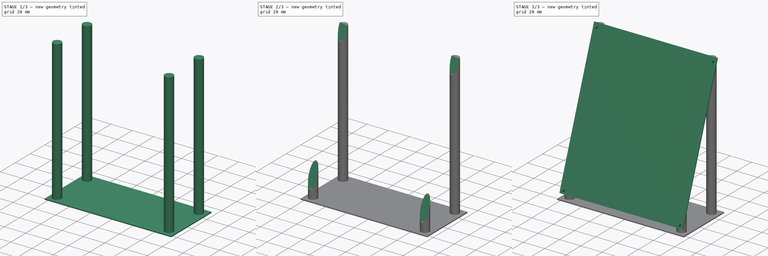
[diagram: build sequence overview — one tinted view per stage of 3, left to right]
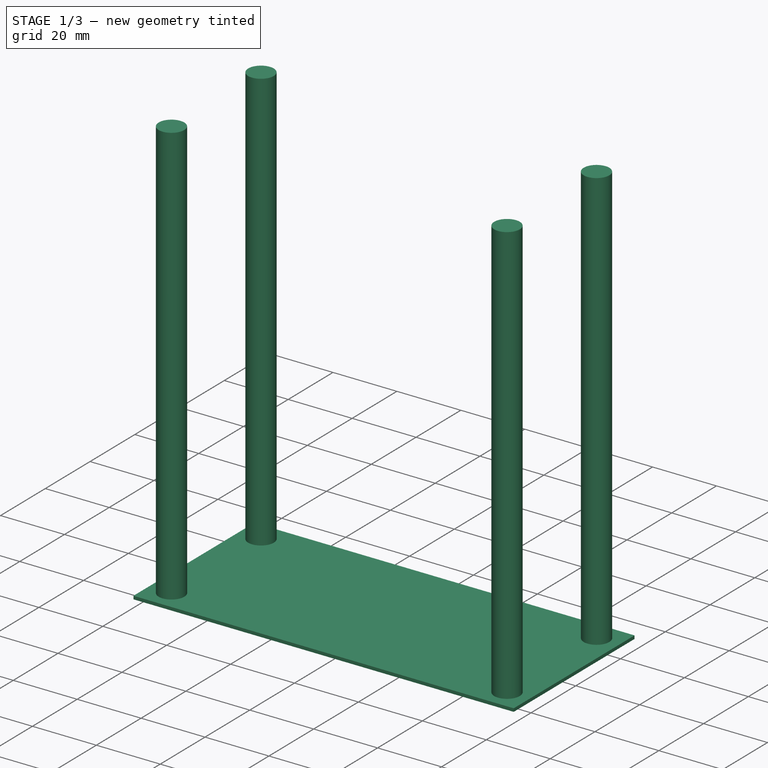
[diagram: stage 1 of 3 — iso view after this stage's code; geometry added in this stage tinted green]
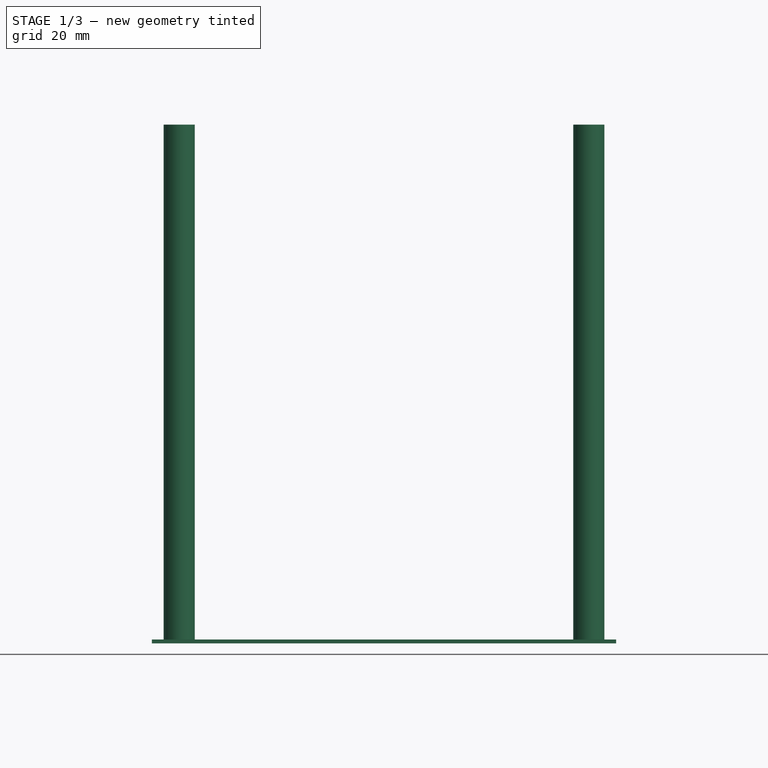
[diagram: stage 1 of 3 — front view after this stage's code; geometry added in this stage tinted green]
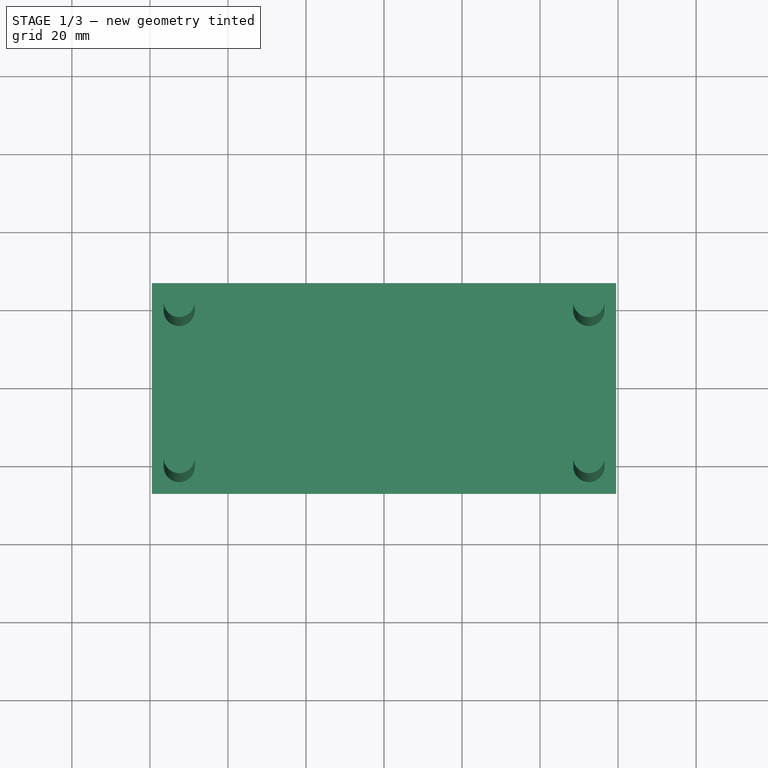
[diagram: stage 1 of 3 — top view after this stage's code; geometry added in this stage tinted green]
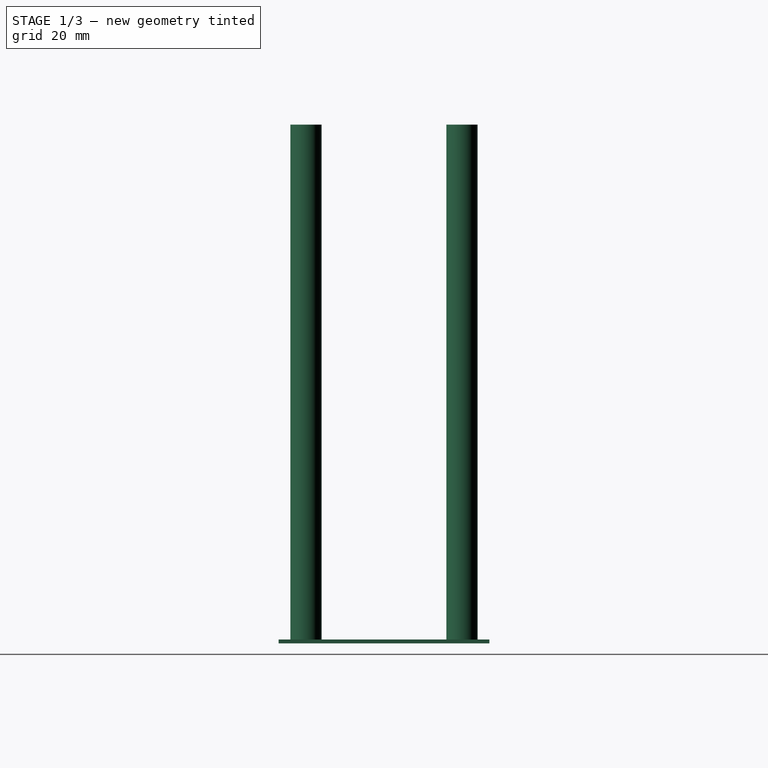
[diagram: stage 1 of 3 — right view after this stage's code; geometry added in this stage tinted green]
FCSTD DOCUMENT  (FreeCAD 0.19R19373 (Git))
Label: Matrix Display Stand
License: All rights reserved
LicenseURL: http://en.wikipedia.org/wiki/All_rights_reserved
objects: Sketcher::SketchObject×4, PartDesign::Pad×4, PartDesign::Plane×1, PartDesign::Pocket×1, PartDesign::Body×1
note: 16 computed .brp shape members not serialized (recipe doc carries the construction recipe); baked Part::Feature solids carry a one-line shape summary decoded from their .brp

FEATURE [Sketcher::SketchObject] Sketch  label="Legs Profile"
  MapMode = 5
  Support = -> [XY_Plane]
  sketch-geometry (7):
    g0: Circle CenterX=-52.5 CenterY=20 CenterZ=0 NormalX=0 NormalY=0 NormalZ=1 AngleXU=0 Radius=4
    g1: Circle CenterX=52.5 CenterY=20 CenterZ=0 NormalX=0 NormalY=0 NormalZ=1 AngleXU=0 Radius=4
    g2: Circle CenterX=52.5 CenterY=-20 CenterZ=0 NormalX=0 NormalY=0 NormalZ=1 AngleXU=0 Radius=4
    g3: Circle CenterX=-52.5 CenterY=-20 CenterZ=0 NormalX=0 NormalY=0 NormalZ=1 AngleXU=0 Radius=4
    g4: LineSegment [constr] StartX=-52.5 StartY=20 StartZ=0 EndX=52.5 EndY=20 EndZ=0
    g5: LineSegment [constr] StartX=52.5 StartY=20 StartZ=0 EndX=52.5 EndY=-20 EndZ=0
    g6: LineSegment [constr] StartX=52.5 StartY=-20 StartZ=0 EndX=-52.5 EndY=-20 EndZ=0
  constraints (17):
    c: Equal(g0,g1)
    c: Equal(g1,g2)
    c: Equal(g2,g3)
    c: Coincident(g4,g0)
    c: Coincident(g4,g1)
    c: Horizontal(g4)
    c: Coincident(g5,g1)
    c: Coincident(g5,g2)
    c: Vertical(g5)
    c: Coincident(g6,g2)
    c: Coincident(g6,g3)
    c: Horizontal(g6)
    c: Equal(g4,g6)
    c: Diameter(g0) = 8
    c: Symmetric(g0,g2,g-1)
    c: DistanceY(g5,g5) = 40
    c: DistanceX(g4,g4) = 105
FEATURE [Sketcher::SketchObject] Sketch001  label="Base Profile"
  ExternalGeometry = -> [Sketch]
  MapMode = 5
  Support = -> [XY_Plane]
  sketch-geometry (8):
    g0: LineSegment StartX=-59.5 StartY=27 StartZ=0 EndX=59.5 EndY=27 EndZ=0
    g1: LineSegment StartX=59.5 StartY=27 StartZ=0 EndX=59.5 EndY=-27 EndZ=0
    g2: LineSegment StartX=59.5 StartY=-27 StartZ=0 EndX=-59.5 EndY=-27 EndZ=0
    g3: LineSegment StartX=-59.5 StartY=-27 StartZ=0 EndX=-59.5 EndY=27 EndZ=0
    g4: LineSegment [constr] StartX=-52.5 StartY=20 StartZ=0 EndX=-52.5 EndY=27 EndZ=0
    g5: LineSegment [constr] StartX=-52.5 StartY=20 StartZ=0 EndX=-59.5 EndY=20 EndZ=0
    g6: LineSegment [constr] StartX=52.5 StartY=-20 StartZ=0 EndX=59.5 EndY=-20 EndZ=0
    g7: LineSegment [constr] StartX=52.5 StartY=-20 StartZ=0 EndX=52.5 EndY=-27 EndZ=0
  constraints (24):
    c: Coincident(g0,g1)
    c: Coincident(g1,g2)
    c: Coincident(g2,g3)
    c: Coincident(g3,g0)
    c: Horizontal(g0)
    c: Horizontal(g2)
    c: Vertical(g1)
    c: Vertical(g3)
    c: Coincident(g4,g-3)
    c: Vertical(g4)
    c: Coincident(g5,g4)
    c: PointOnObject(g5,g3)
    c: Horizontal(g5)
    c: PointOnObject(g4,g0)
    c: Coincident(g6,g-4)
    c: PointOnObject(g6,g1)
    c: Horizontal(g6)
    c: Coincident(g7,g6)
    c: PointOnObject(g7,g2)
    c: Vertical(g7)
    c: Equal(g6,g7)
    c: Equal(g7,g4)
    c: Equal(g4,g5)
    c: DistanceY(g4,g4) = 7
FEATURE [PartDesign::Pad] Pad  label="Base"
  Length = 1
  Length2 = 100
  Profile = -> Sketch001
  Reversed = true
  Type = 0
FEATURE [PartDesign::Pad] Pad001  label="Legs"
  BaseFeature = -> Pad
  Length = 132
  Length2 = 100
  Profile = -> Sketch
  Type = 0
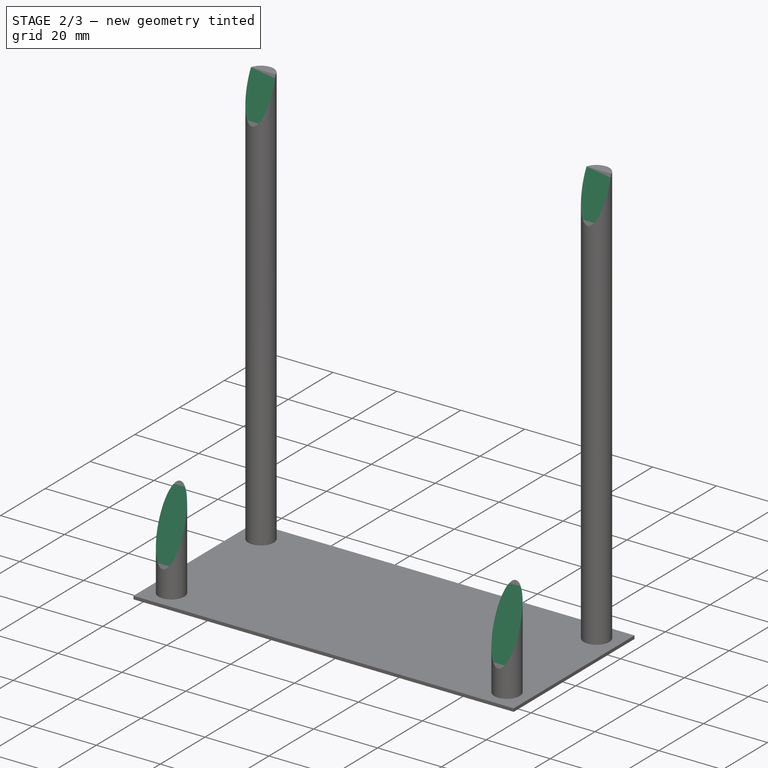
[diagram: stage 2 of 3 — iso view after this stage's code; geometry added in this stage tinted green]
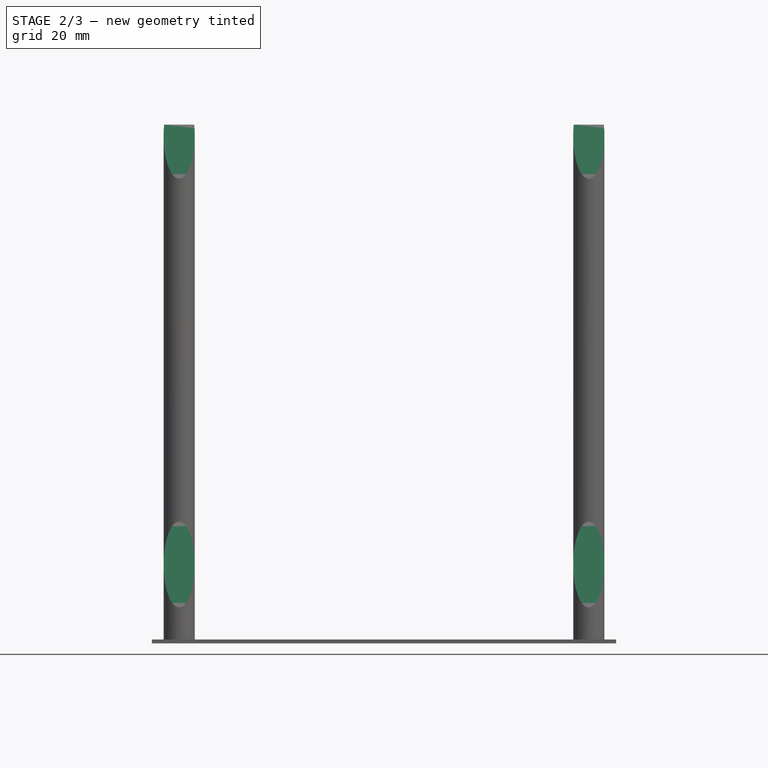
[diagram: stage 2 of 3 — front view after this stage's code; geometry added in this stage tinted green]
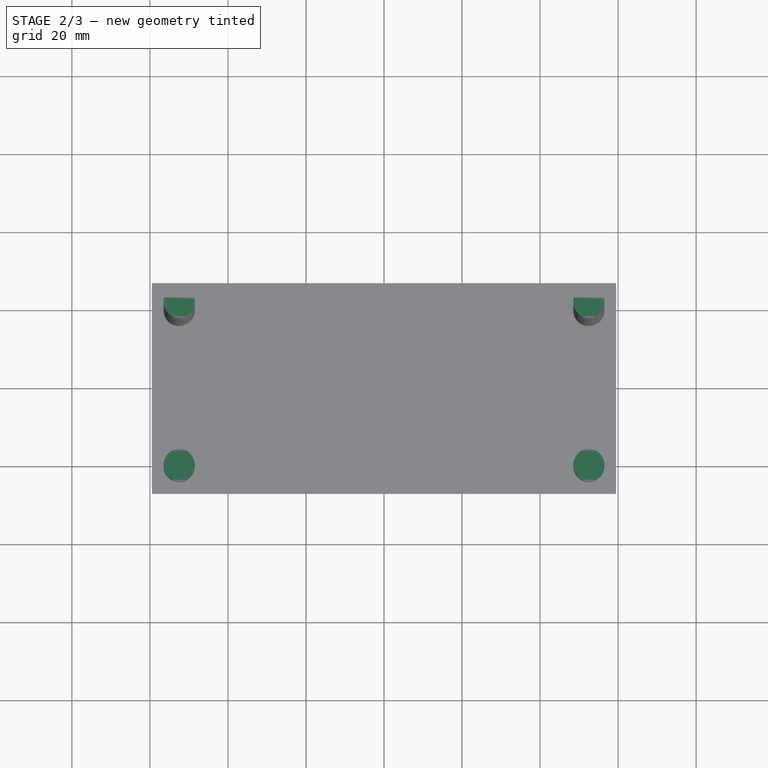
[diagram: stage 2 of 3 — top view after this stage's code; geometry added in this stage tinted green]
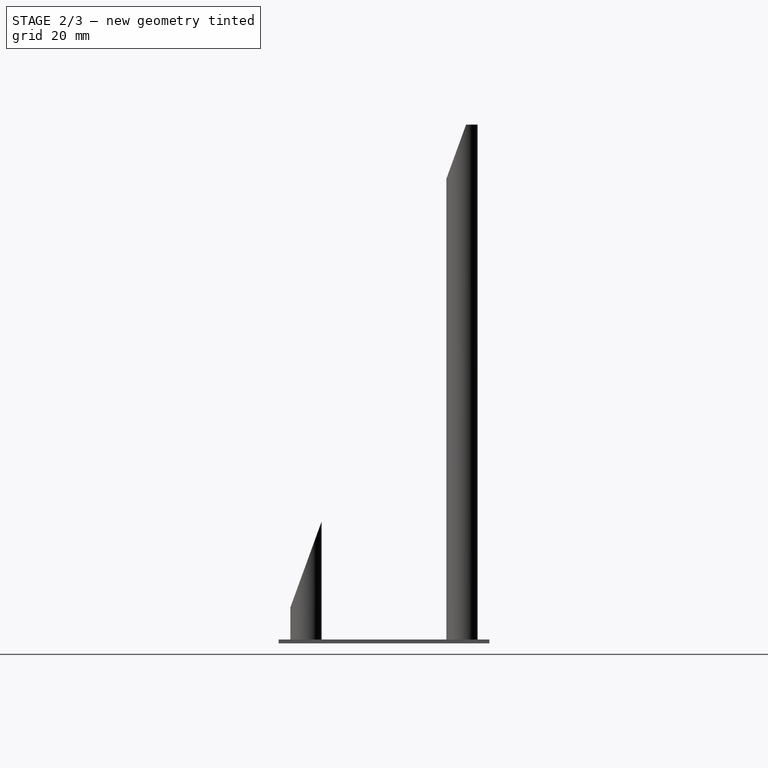
[diagram: stage 2 of 3 — right view after this stage's code; geometry added in this stage tinted green]
FEATURE [PartDesign::Plane] DatumPlane
  AttachmentOffset = pos=(0,-27,0) rot=(1,0,0;1.22173rad)
  Length = 147.11
  MapMode = 5
  Placement = pos=(0,-27,0) rot=(1,0,0;1.22173rad)
  ResizeMode = 0
  Support = -> [XY_Plane]
  Width = 194.114
FEATURE [Sketcher::SketchObject] Sketch002  label="Holder Base Profile"
  MapMode = 5
  Placement = pos=(0,-27,0) rot=(1,0,0;1.22173rad)
  Support = -> [DatumPlane]
  sketch-geometry (7):
    g0: LineSegment StartX=-57.785 StartY=140.89 StartZ=0 EndX=57.785 EndY=140.89 EndZ=0
    g1: LineSegment StartX=57.785 StartY=140.89 StartZ=0 EndX=57.785 EndY=5 EndZ=0
    g2: LineSegment StartX=57.785 StartY=5 StartZ=0 EndX=-57.785 EndY=5 EndZ=0
    g3: LineSegment StartX=-57.785 StartY=5 StartZ=0 EndX=-57.785 EndY=140.89 EndZ=0
    g4: LineSegment [constr] StartX=0 StartY=0 StartZ=0 EndX=-57.785 EndY=5 EndZ=0
    g5: LineSegment [constr] StartX=57.785 StartY=5 StartZ=0 EndX=0 EndY=0 EndZ=0
    g6: LineSegment [constr] StartX=57.785 StartY=5 StartZ=0 EndX=57.785 EndY=0 EndZ=0
  constraints (19):
    c: Coincident(g0,g1)
    c: Coincident(g1,g2)
    c: Coincident(g2,g3)
    c: Coincident(g3,g0)
    c: Horizontal(g0)
    c: Horizontal(g2)
    c: Vertical(g1)
    c: Vertical(g3)
    c: DistanceX(g0,g0) = 115.57
    c: DistanceY(g1,g1) = 135.89
    c: Coincident(g4,g-1)
    c: Coincident(g4,g2)
    c: Coincident(g5,g1)
    c: Coincident(g5,g-1)
    c: Equal(g5,g4)
    c: Coincident(g6,g1)
    c: PointOnObject(g6,g-1)
    c: Vertical(g6)
    c: DistanceY(g6,g6) = 5
FEATURE [PartDesign::Pocket] Pocket  label="Leg Chopper"
  BaseFeature = -> Pad001
  Length = 50
  Length2 = 100
  Profile = -> Sketch002
  Reversed = true
  Type = 0
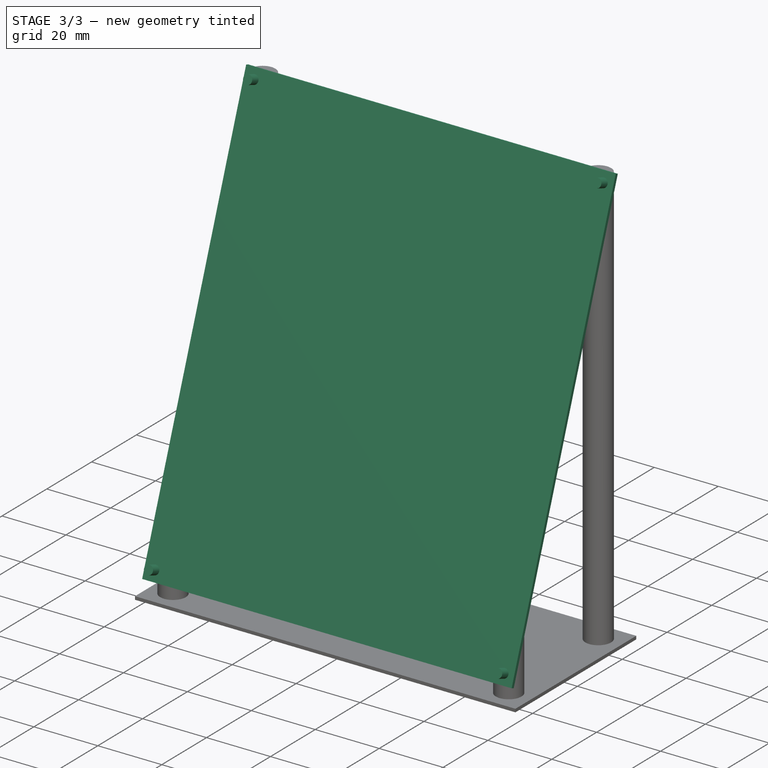
[diagram: stage 3 of 3 — iso view after this stage's code; geometry added in this stage tinted green]
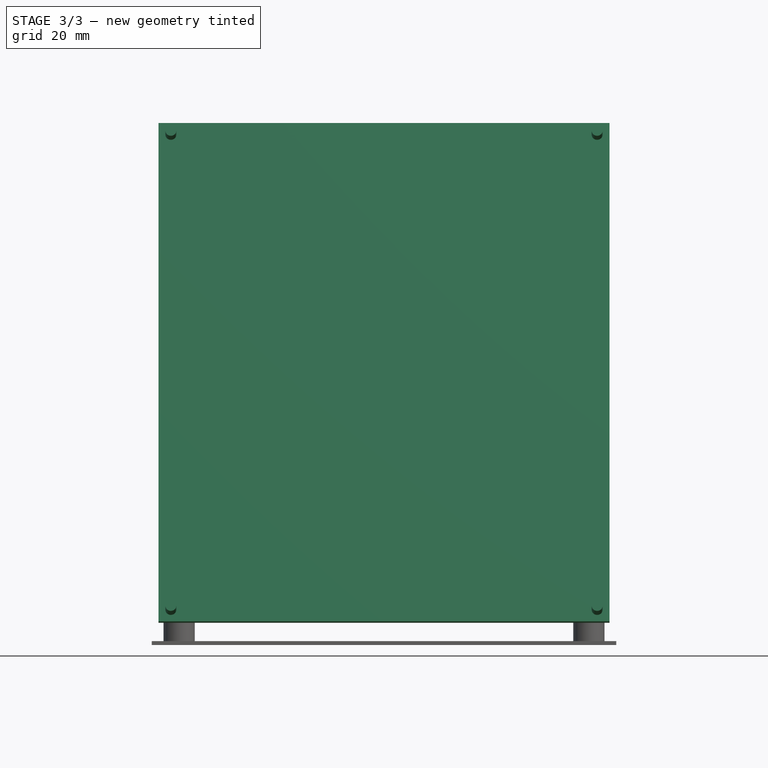
[diagram: stage 3 of 3 — front view after this stage's code; geometry added in this stage tinted green]
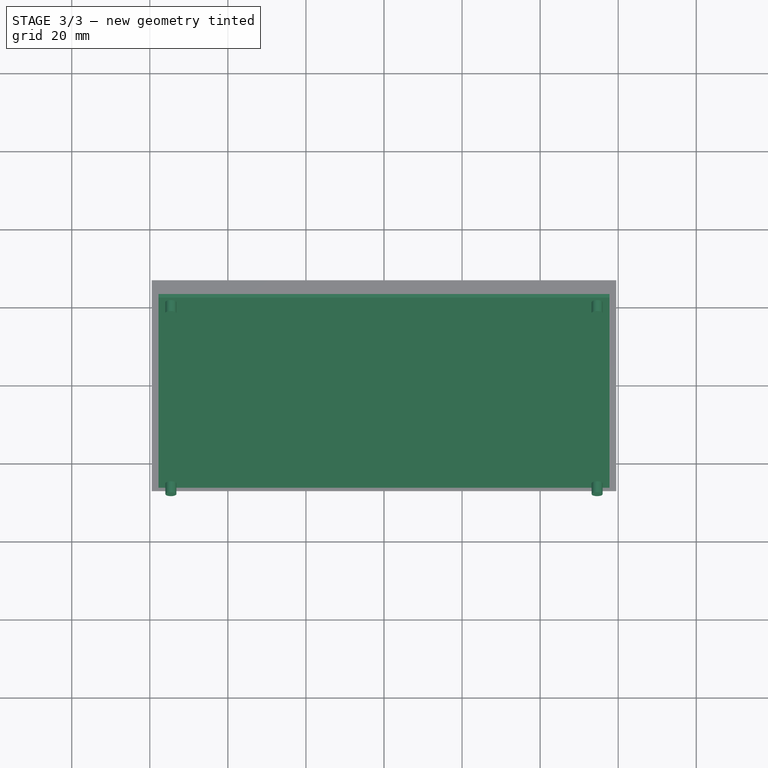
[diagram: stage 3 of 3 — top view after this stage's code; geometry added in this stage tinted green]
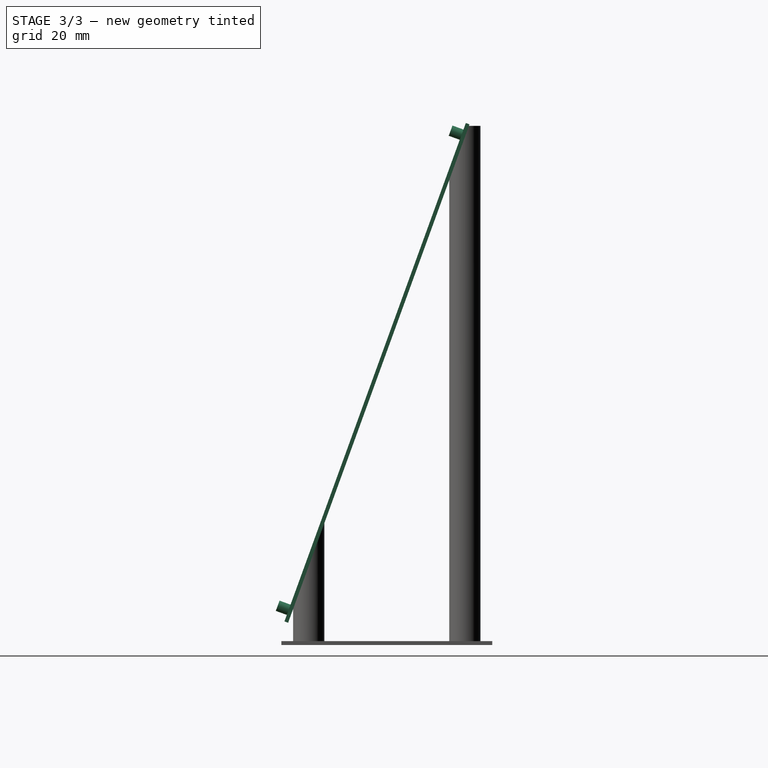
[diagram: stage 3 of 3 — right view after this stage's code; geometry added in this stage tinted green]
FEATURE [PartDesign::Pad] Pad002  label="Holder Base"
  BaseFeature = -> Pocket
  Length = 1
  Length2 = 100
  Profile = -> Sketch002
  Type = 0
FEATURE [Sketcher::SketchObject] Sketch003  label="Pegs Profile"
  ExternalGeometry = -> [Sketch002]
  MapMode = 5
  Placement = pos=(0,-27,0) rot=(1,0,0;1.22173rad)
  Support = -> [DatumPlane]
  sketch-geometry (9):
    g0: Circle CenterX=-54.61 CenterY=137.715 CenterZ=0 NormalX=0 NormalY=0 NormalZ=1 AngleXU=0 Radius=1.4
    g1: Circle CenterX=54.61 CenterY=137.715 CenterZ=0 NormalX=0 NormalY=0 NormalZ=1 AngleXU=0 Radius=1.4
    g2: Circle CenterX=54.61 CenterY=8.175 CenterZ=0 NormalX=0 NormalY=0 NormalZ=1 AngleXU=0 Radius=1.4
    g3: Circle CenterX=-54.61 CenterY=8.175 CenterZ=0 NormalX=0 NormalY=0 NormalZ=1 AngleXU=0 Radius=1.4
    g4: LineSegment [constr] StartX=-54.61 StartY=137.715 StartZ=0 EndX=54.61 EndY=137.715 EndZ=0
    g5: LineSegment [constr] StartX=54.61 StartY=137.715 StartZ=0 EndX=54.61 EndY=8.175 EndZ=0
    g6: LineSegment [constr] StartX=54.61 StartY=8.175 StartZ=0 EndX=-54.61 EndY=8.175 EndZ=0
    g7: LineSegment [constr] StartX=-57.785 StartY=140.89 StartZ=0 EndX=-54.61 EndY=137.715 EndZ=0
    g8: LineSegment [constr] StartX=54.61 StartY=8.175 StartZ=0 EndX=57.785 EndY=5 EndZ=0
  constraints (22):
    c: Equal(g0,g1)
    c: Equal(g1,g2)
    c: Equal(g2,g3)
    c: Coincident(g4,g0)
    c: Coincident(g4,g1)
    c: Horizontal(g4)
    c: Coincident(g5,g1)
    c: Coincident(g5,g2)
    c: Vertical(g5)
    c: Coincident(g6,g2)
    c: Coincident(g6,g3)
    c: Horizontal(g6)
    c: Equal(g4,g6)
    c: Diameter(g0) = 2.8
    c: DistanceX(g4,g4) = 109.22
    c: DistanceY(g5,g5) = 129.54
    c: Coincident(g7,g-3)
    c: Coincident(g7,g0)
    c: Coincident(g8,g2)
    c: Coincident(g8,g-4)
    c: Equal(g8,g7)
    c: Parallel(g7,g8)
FEATURE [PartDesign::Pad] Pad003  label="Pegs"
  BaseFeature = -> Pad002
  Length = 4
  Length2 = 100
  Profile = -> Sketch003
  Type = 0
FEATURE [PartDesign::Body] Body
  Group = -> [Sketch,Sketch001,Pad,Pad001,DatumPlane,Sketch002,Pocket,Pad002,Sketch003,Pad003]
  Origin = -> Origin
  Tip = -> Pad003
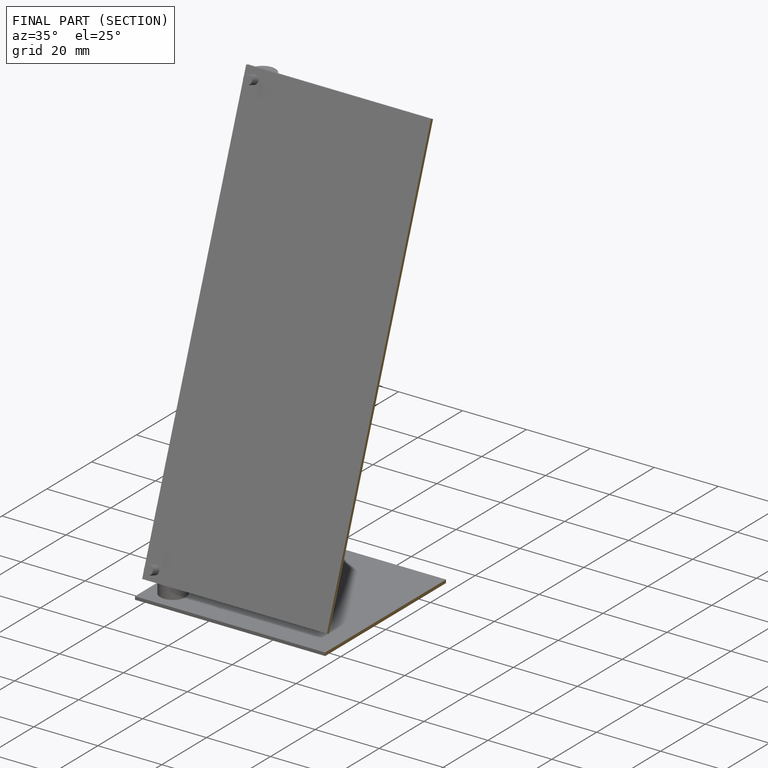
[diagram: finished part — half-section view (interior)]
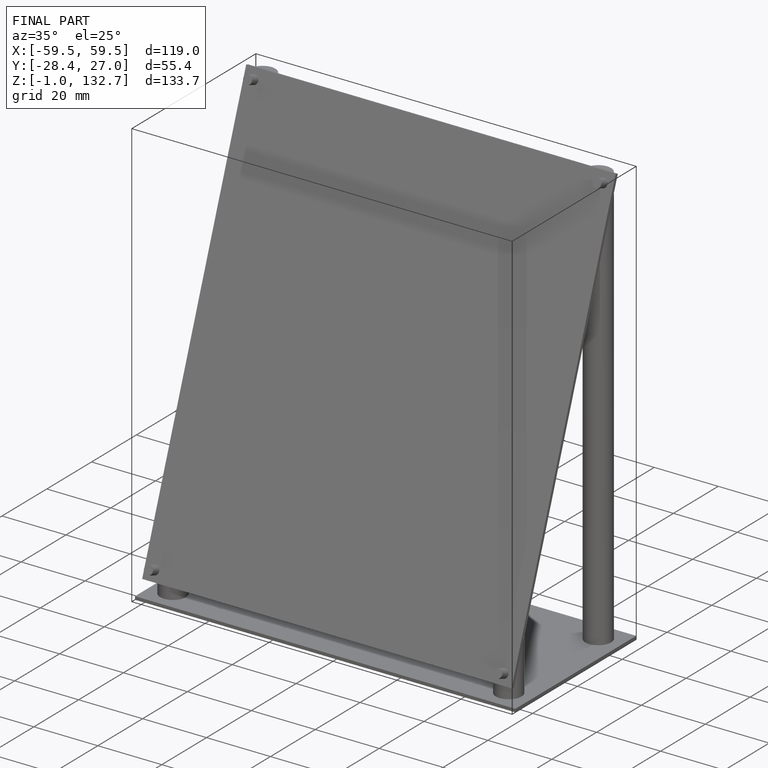
[diagram: finished part — iso view with bounding-box wireframe]
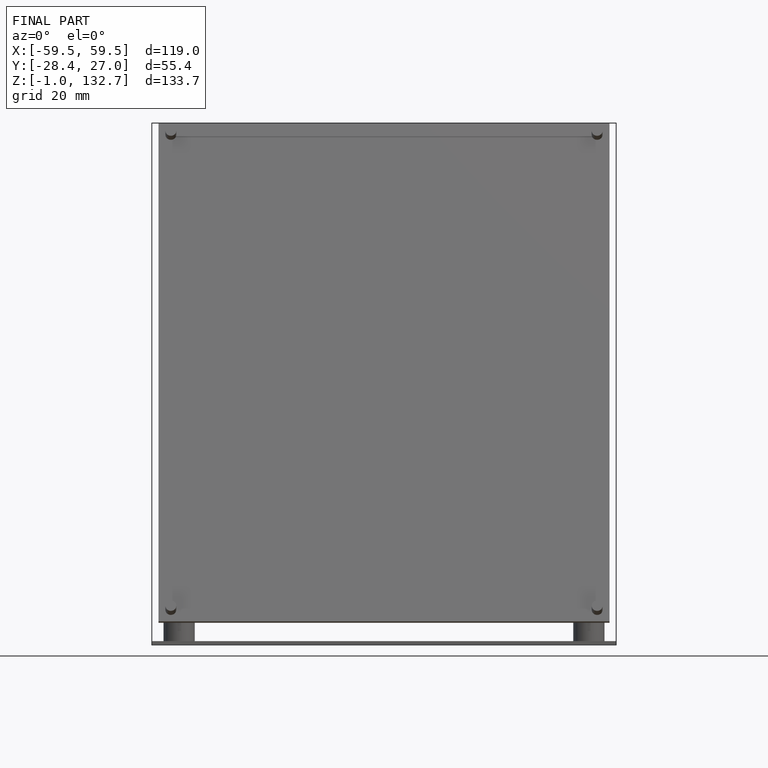
[diagram: finished part — front view with bounding-box wireframe]
